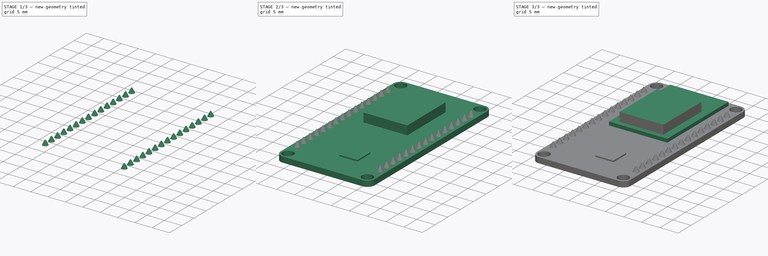
[diagram: build sequence overview — one tinted view per stage of 3, left to right]
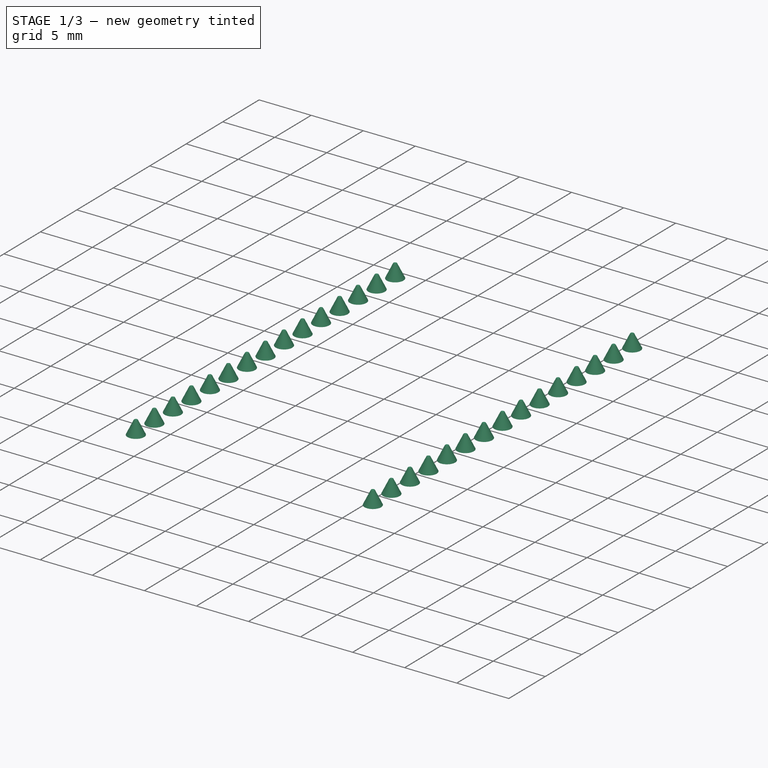
[diagram: stage 1 of 3 — iso view after this stage's code; geometry added in this stage tinted green]
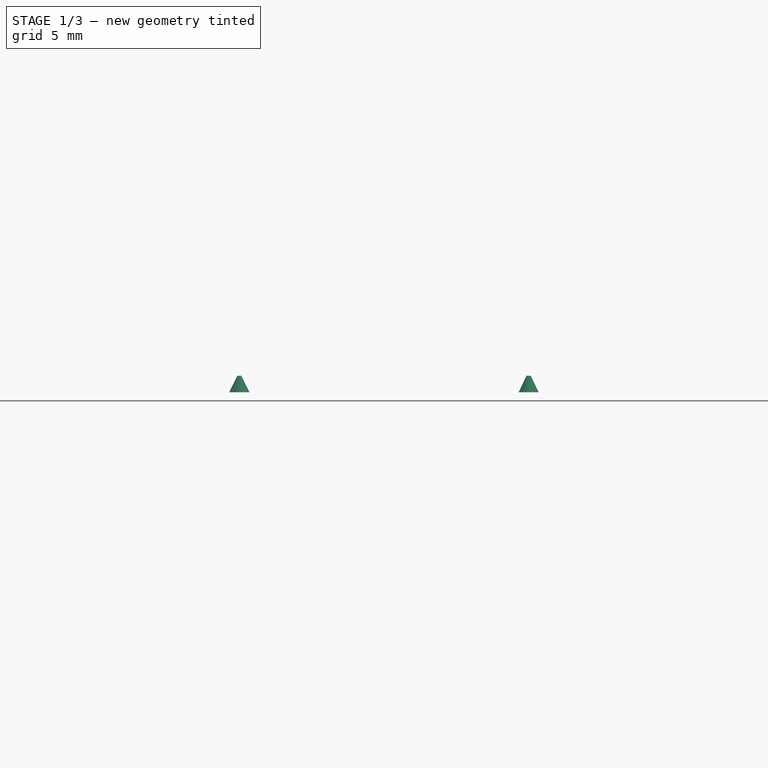
[diagram: stage 1 of 3 — front view after this stage's code; geometry added in this stage tinted green]
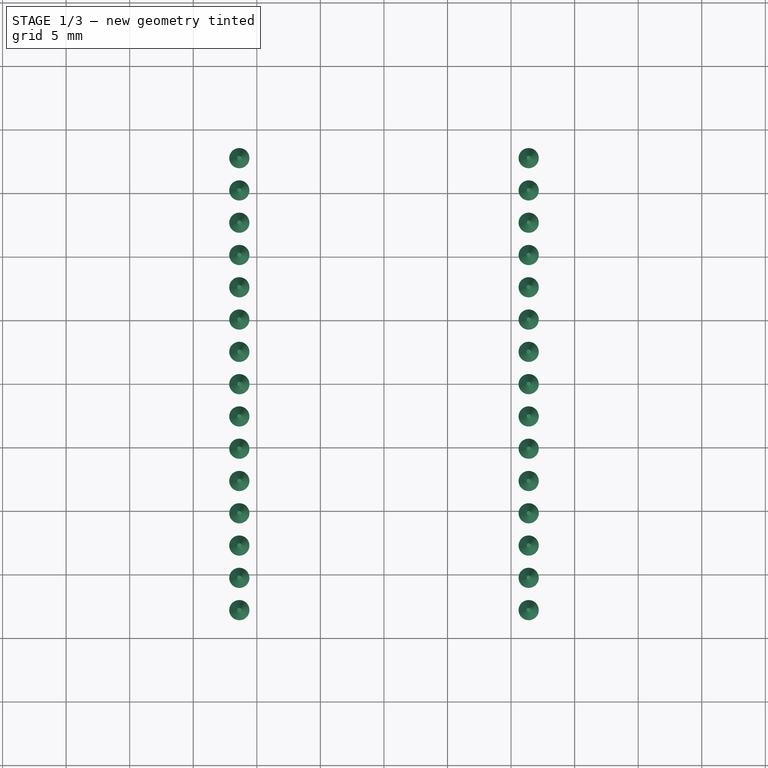
[diagram: stage 1 of 3 — top view after this stage's code; geometry added in this stage tinted green]
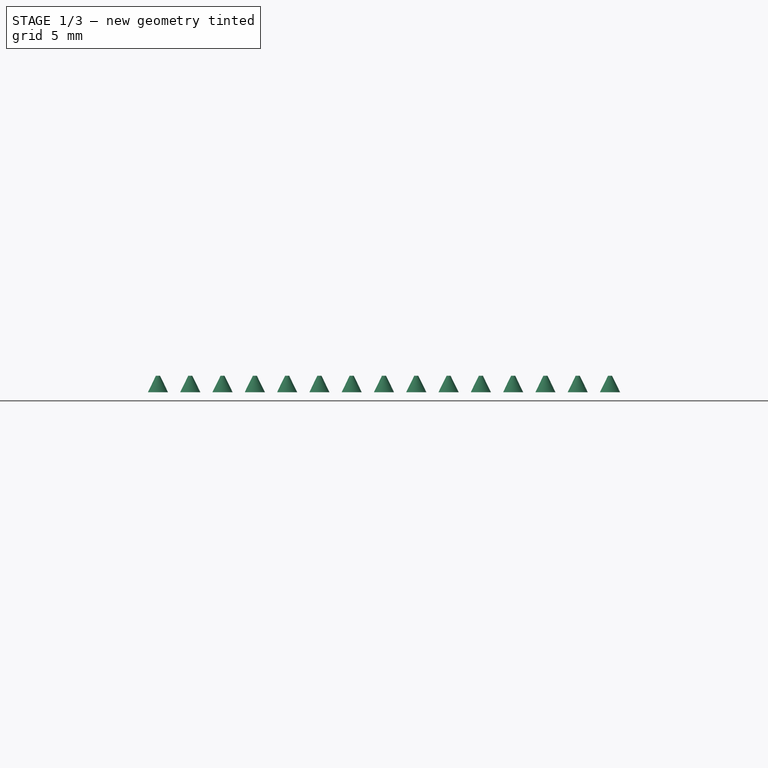
[diagram: stage 1 of 3 — right view after this stage's code; geometry added in this stage tinted green]
FCSTD DOCUMENT  (FreeCAD 0.18R15353 (Git))
Label: NodeMCU_Mockup
License: All rights reserved
LicenseURL: http://en.wikipedia.org/wiki/All_rights_reserved
objects: Part::Feature×6, Part::Box×3, Sketcher::SketchObject×1, Part::Fuse×1, PartDesign::Pad×1, PartDesign::Body×1, Part::Part2DObjectPython×1, Part::Loft×1, Part::FeaturePython×1, App::DocumentObjectGroup×1
note: 17 computed .brp shape members not serialized (recipe doc carries the construction recipe); baked Part::Feature solids carry a one-line shape summary decoded from their .brp

FEATURE [Part::Feature] Face003
  shape: bbox 2.351 x 2.356 x 2e-07 mm, 1 faces, 0 solids (baked)
FEATURE [Part::Part2DObjectPython] Circle  # Draft 2D object (typed FeaturePython)
  FirstAngle = 0
  LastAngle = 0
  MakeFace = true
  Placement = pos=(-11.375,-17.78,2.84) rot=(0,0,1;1.5708rad)
  Radius = 0.16
FEATURE [Part::Loft] Loft
  Closed = false
  MaxDegree = 5
  Ruled = false
  Sections = -> [Face003,Circle]
  Solid = true
FEATURE [Part::FeaturePython] Array  # Draft array (typed FeaturePython)
  Angle = 360
  ArrayType = 0
  Axis = (0,0,1)
  Base = -> Loft
  Center = (0,0,0)
  Fuse = false
  IntervalAxis = (0,0,0)
  IntervalX = (22.76,0,0)
  IntervalY = (0,2.54,0)
  IntervalZ = (0,0,1)
  NumberPolar = 1
  NumberX = 2
  NumberY = 15
  NumberZ = 1
FEATURE [App::DocumentObjectGroup] Group
  Group = -> [Body,Part__Feature,Part__Feature001,Fusion,Part__Feature011,Part__Feature012,Part__Feature013,Box002,Array]
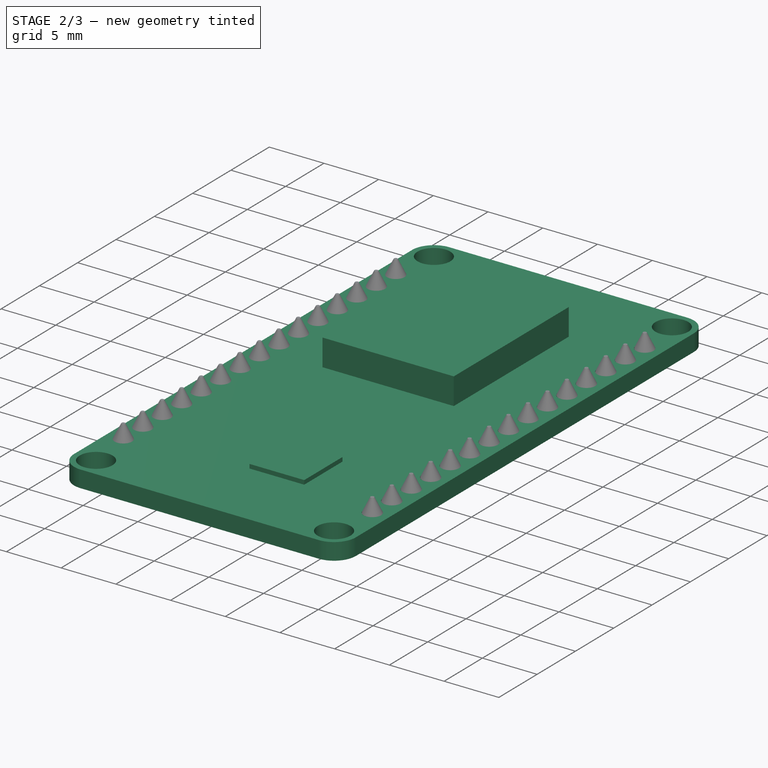
[diagram: stage 2 of 3 — iso view after this stage's code; geometry added in this stage tinted green]
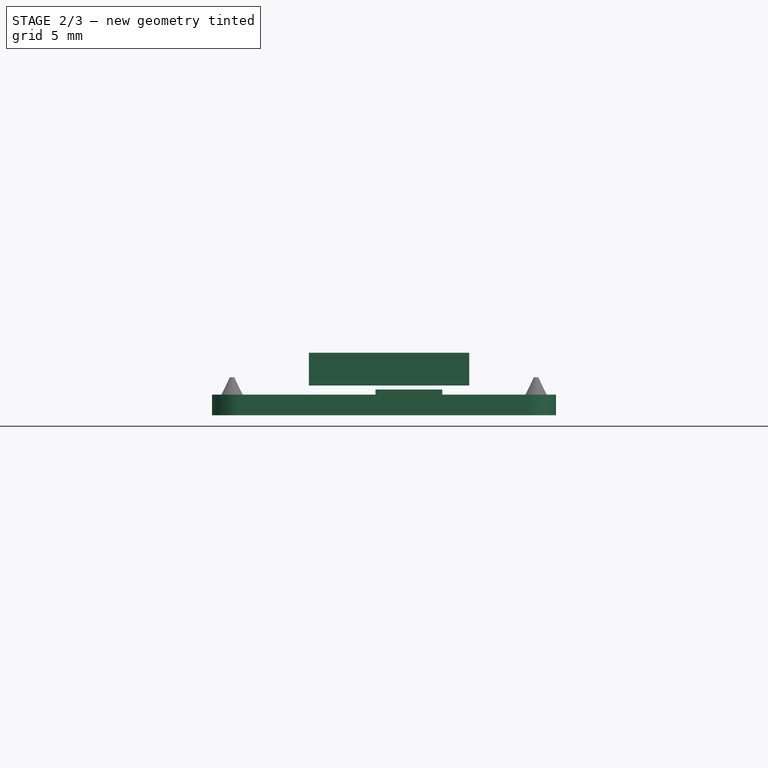
[diagram: stage 2 of 3 — front view after this stage's code; geometry added in this stage tinted green]
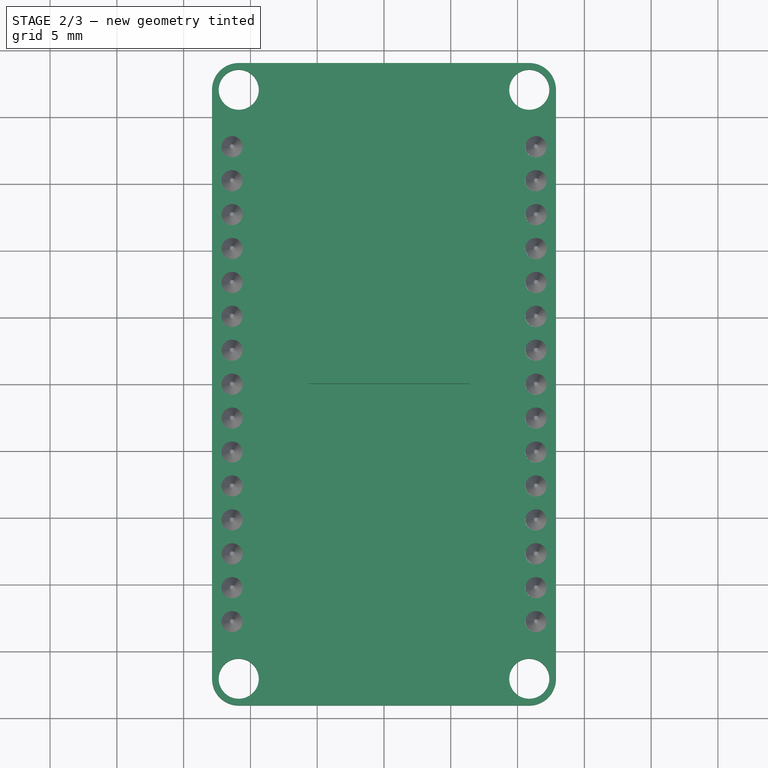
[diagram: stage 2 of 3 — top view after this stage's code; geometry added in this stage tinted green]
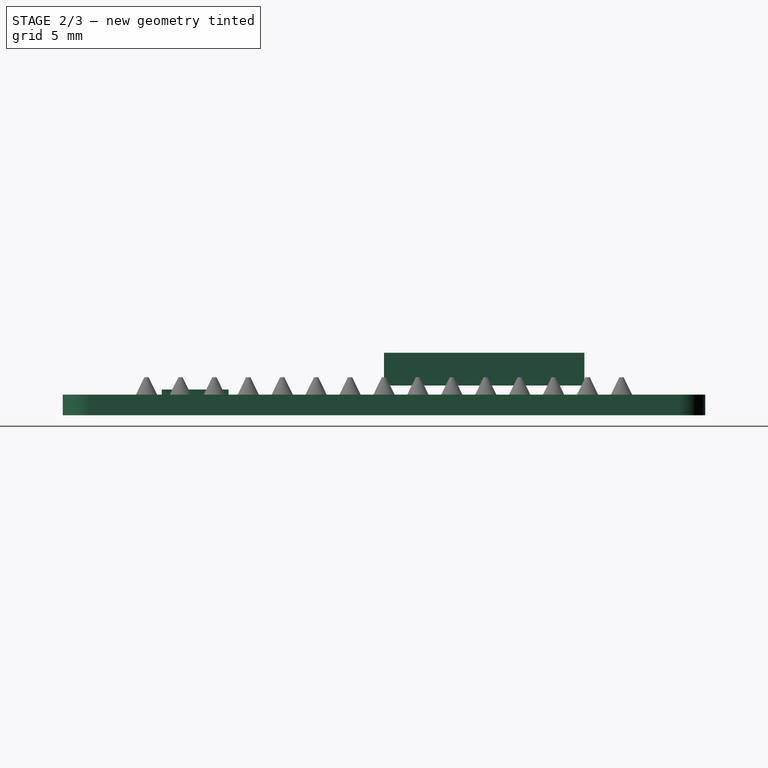
[diagram: stage 2 of 3 — right view after this stage's code; geometry added in this stage tinted green]
FEATURE [Part::Box] Box  label="ESP"
  AttacherType = Attacher::AttachEngine3D
  Height = 2.45
  Length = 12
  Placement = pos=(-5.62,0,2.22) rot=(0,0,1;0rad)
  Width = 15
FEATURE [Part::Feature] Part__Feature011  label="SW_SPST_B3U-1000P"
  Placement = pos=(-6,-21.16,1.54) rot=(0,0,-1;1.5708rad)
  shape: bbox 2.5 x 4 x 1.59 mm, 242 faces (baked)
FEATURE [Part::Feature] Part__Feature012  label="SW_SPST_B3U-1000P001"
  Placement = pos=(6,-21.255,1.54) rot=(0,0,-1;1.5708rad)
  shape: bbox 2.5 x 4 x 1.59 mm, 242 faces (baked)
FEATURE [Part::Feature] Part__Feature013  label="USB_Micro-B_Molex_47346-0001"
  Placement = pos=(0,-21,1.54) rot=(0,0,1;0rad)
  shape: bbox 7.977 x 5.418 x 2.937 mm, 484 faces (baked)
FEATURE [PartDesign::Pad] Pad
  Length = 1.54
  Length2 = 100
  Profile = -> Sketch001
  Type = 0
FEATURE [PartDesign::Body] Body
  Group = -> [Sketch001,Pad]
  Origin = -> Origin
  Tip = -> Pad
FEATURE [Part::Box] Box002  label="Cube"
  AttacherType = Attacher::AttachEngine3D
  Height = 0.64
  Length = 5
  Placement = pos=(-0.64,-16.64,1.28) rot=(0,0,1;0rad)
  Width = 5
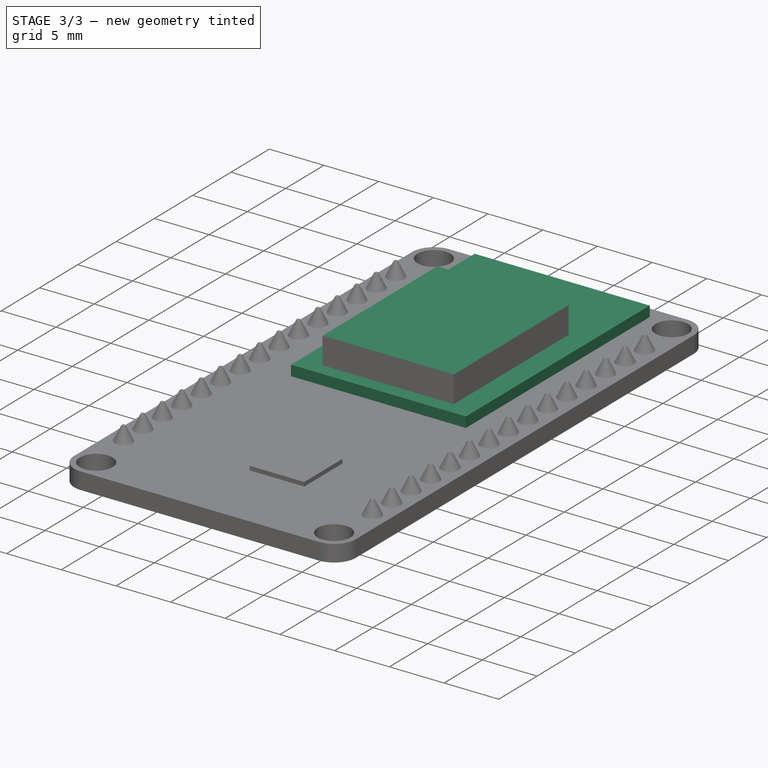
[diagram: stage 3 of 3 — iso view after this stage's code; geometry added in this stage tinted green]
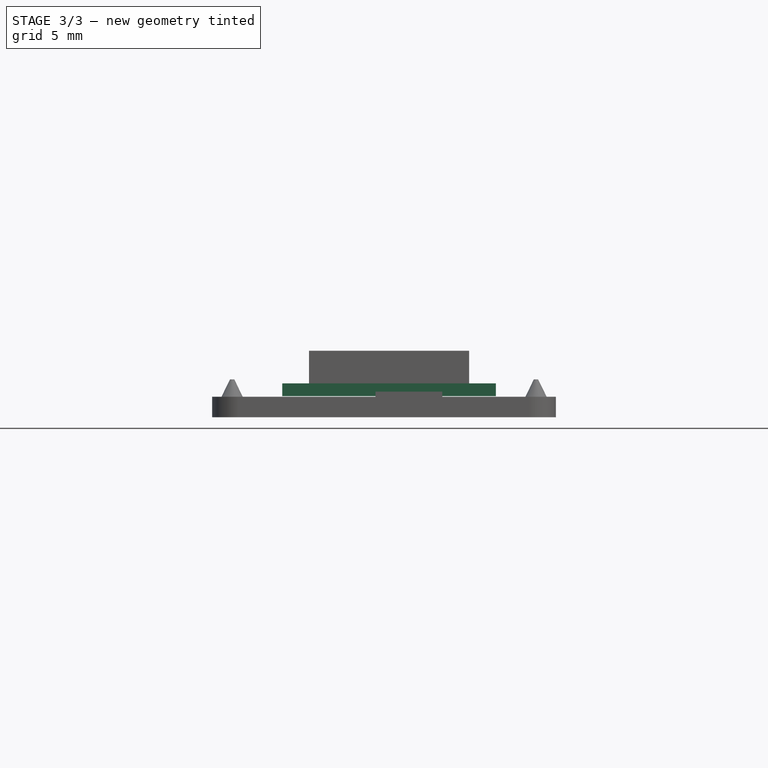
[diagram: stage 3 of 3 — front view after this stage's code; geometry added in this stage tinted green]
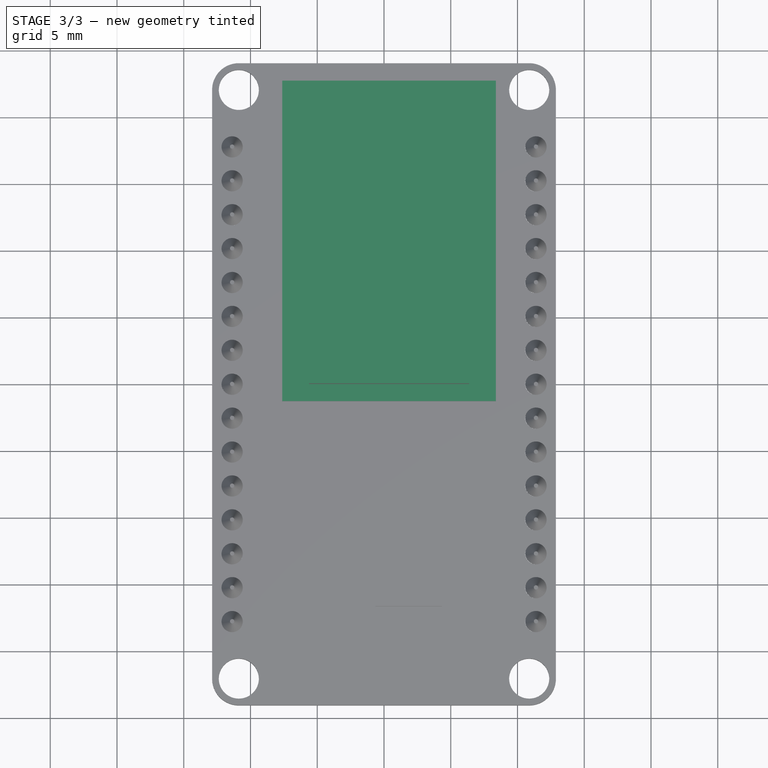
[diagram: stage 3 of 3 — top view after this stage's code; geometry added in this stage tinted green]
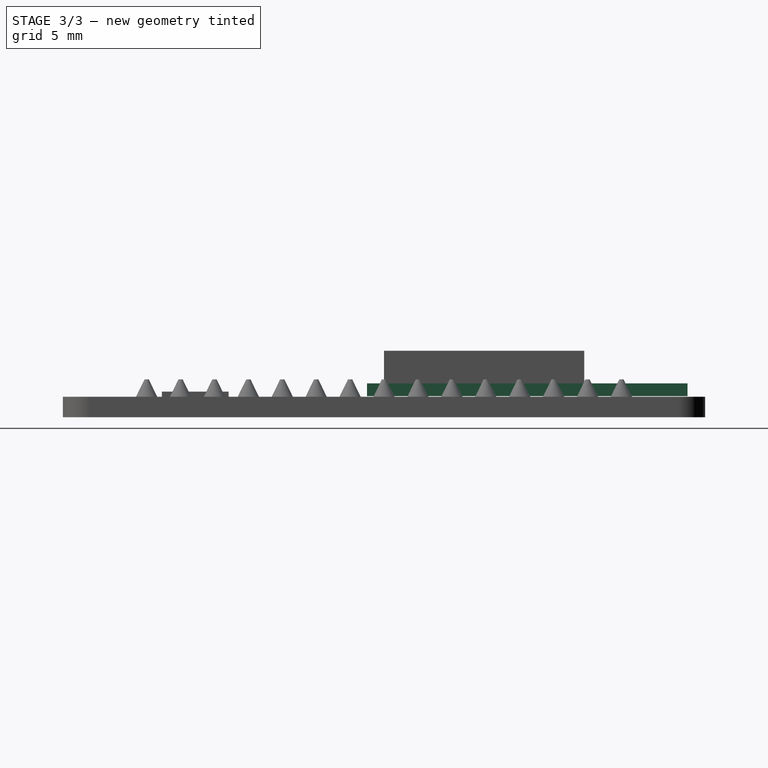
[diagram: stage 3 of 3 — right view after this stage's code; geometry added in this stage tinted green]
FEATURE [Sketcher::SketchObject] Sketch001
  sketch-geometry (70):
    g0: LineSegment StartX=-10.875 StartY=24.05 StartZ=0 EndX=10.875 EndY=24.05 EndZ=0
    g1: LineSegment StartX=12.875 StartY=22.05 StartZ=0 EndX=12.875 EndY=-22.05 EndZ=0
    g2: LineSegment StartX=10.875 StartY=-24.05 StartZ=0 EndX=-10.875 EndY=-24.05 EndZ=0
    g3: LineSegment StartX=-12.875 StartY=-22.05 StartZ=0 EndX=-12.875 EndY=22.05 EndZ=0
    g4: ArcOfCircle CenterX=-10.875 CenterY=22.05 CenterZ=0 NormalX=0 NormalY=0 NormalZ=1 AngleXU=0 Radius=2 StartAngle=1.5708 EndAngle=3.14159
    g5: ArcOfCircle CenterX=10.875 CenterY=22.05 CenterZ=0 NormalX=0 NormalY=0 NormalZ=1 AngleXU=0 Radius=2 StartAngle=2e-16 EndAngle=1.5708
    g6: ArcOfCircle CenterX=10.875 CenterY=-22.05 CenterZ=0 NormalX=0 NormalY=0 NormalZ=1 AngleXU=0 Radius=2 StartAngle=4.71239 EndAngle=6.28319
    g7: ArcOfCircle CenterX=-10.875 CenterY=-22.05 CenterZ=0 NormalX=0 NormalY=0 NormalZ=1 AngleXU=0 Radius=2 StartAngle=3.14159 EndAngle=4.71239
    g8: Circle CenterX=-10.875 CenterY=22.05 CenterZ=0 NormalX=0 NormalY=0 NormalZ=1 AngleXU=0 Radius=1.5
    g9: Circle CenterX=10.875 CenterY=22.05 CenterZ=0 NormalX=0 NormalY=0 NormalZ=1 AngleXU=0 Radius=1.5
    g10: Circle CenterX=10.875 CenterY=-22.05 CenterZ=0 NormalX=0 NormalY=0 NormalZ=1 AngleXU=0 Radius=1.5
    g11: Circle CenterX=-10.875 CenterY=-22.05 CenterZ=0 NormalX=0 NormalY=0 NormalZ=1 AngleXU=0 Radius=1.5
    g12: Circle CenterX=-11.375 CenterY=17.78 CenterZ=0 NormalX=0 NormalY=0 NormalZ=1 AngleXU=0 Radius=0.79375
    g13: Circle CenterX=-11.375 CenterY=-17.78 CenterZ=0 NormalX=0 NormalY=0 NormalZ=1 AngleXU=0 Radius=0.79375
    g14: Circle CenterX=-11.375 CenterY=15.24 CenterZ=0 NormalX=0 NormalY=0 NormalZ=1 AngleXU=0 Radius=0.79375
    g15: Circle CenterX=-11.375 CenterY=12.7 CenterZ=0 NormalX=0 NormalY=0 NormalZ=1 AngleXU=0 Radius=0.79375
    g16: Circle CenterX=-11.375 CenterY=10.16 CenterZ=0 NormalX=0 NormalY=0 NormalZ=1 AngleXU=0 Radius=0.79375
    g17: Circle CenterX=-11.375 CenterY=7.62 CenterZ=0 NormalX=0 NormalY=0 NormalZ=1 AngleXU=0 Radius=0.79375
    g18: Circle CenterX=-11.375 CenterY=5.08 CenterZ=0 NormalX=0 NormalY=0 NormalZ=1 AngleXU=0 Radius=0.79375
    g19: Circle CenterX=-11.375 CenterY=2.54 CenterZ=0 NormalX=0 NormalY=0 NormalZ=1 AngleXU=0 Radius=0.79375
    g20: Circle CenterX=-11.375 CenterY=-12.7 CenterZ=0 NormalX=0 NormalY=0 NormalZ=1 AngleXU=0 Radius=0.79375
    g21: Circle CenterX=-11.375 CenterY=-15.24 CenterZ=0 NormalX=0 NormalY=0 NormalZ=1 AngleXU=0 Radius=0.79375
    g22: Circle CenterX=-11.375 CenterY=-10.16 CenterZ=0 NormalX=0 NormalY=0 NormalZ=1 AngleXU=0 Radius=0.79375
    g23: Circle CenterX=-11.375 CenterY=-7.62 CenterZ=0 NormalX=0 NormalY=0 NormalZ=1 AngleXU=0 Radius=0.79375
    g24: Circle CenterX=-11.375 CenterY=-5.08 CenterZ=0 NormalX=0 NormalY=0 NormalZ=1 AngleXU=0 Radius=0.79375
    g25: Circle CenterX=-11.375 CenterY=-2.54 CenterZ=0 NormalX=0 NormalY=0 NormalZ=1 AngleXU=0 Radius=0.79375
    g26: Circle CenterX=-11.375 CenterY=0 CenterZ=0 NormalX=0 NormalY=0 NormalZ=1 AngleXU=0 Radius=0.79375
    g27: LineSegment [constr] StartX=-11.375 StartY=17.78 StartZ=0 EndX=-11.375 EndY=15.24 EndZ=0
    g28: LineSegment [constr] StartX=-11.375 StartY=15.24 StartZ=0 EndX=-11.375 EndY=12.7 EndZ=0
    g29: LineSegment [constr] StartX=-11.375 StartY=12.7 StartZ=0 EndX=-11.375 EndY=10.16 EndZ=0
    g30: LineSegment [constr] StartX=-11.375 StartY=10.16 StartZ=0 EndX=-11.375 EndY=7.62 EndZ=0
    g31: LineSegment [constr] StartX=-11.375 StartY=7.62 StartZ=0 EndX=-11.375 EndY=5.08 EndZ=0
    g32: LineSegment [constr] StartX=-11.375 StartY=5.08 StartZ=0 EndX=-11.375 EndY=2.54 EndZ=0
    g33: LineSegment [constr] StartX=-11.375 StartY=2.54 StartZ=0 EndX=-11.375 EndY=0 EndZ=0
    g34: LineSegment [constr] StartX=-11.375 StartY=0 StartZ=0 EndX=-11.375 EndY=-2.54 EndZ=0
    g35: LineSegment [constr] StartX=-11.375 StartY=-2.54 StartZ=0 EndX=-11.375 EndY=-5.08 EndZ=0
    g36: LineSegment [constr] StartX=-11.375 StartY=-5.08 StartZ=0 EndX=-11.375 EndY=-7.62 EndZ=0
    g37: LineSegment [constr] StartX=-11.375 StartY=-7.62 StartZ=0 EndX=-11.375 EndY=-10.16 EndZ=0
    g38: LineSegment [constr] StartX=-11.375 StartY=-10.16 StartZ=0 EndX=-11.375 EndY=-12.7 EndZ=0
    g39: LineSegment [constr] StartX=-11.375 StartY=-12.7 StartZ=0 EndX=-11.375 EndY=-15.24 EndZ=0
    g40: LineSegment [constr] StartX=-11.375 StartY=-15.24 StartZ=0 EndX=-11.375 EndY=-17.78 EndZ=0
    g41: Circle CenterX=11.375 CenterY=17.78 CenterZ=0 NormalX=0 NormalY=0 NormalZ=1 AngleXU=0 Radius=0.79375
    g42: Circle CenterX=11.375 CenterY=-17.78 CenterZ=0 NormalX=0 NormalY=0 NormalZ=1 AngleXU=0 Radius=0.79375
    g43: Circle CenterX=11.375 CenterY=15.24 CenterZ=0 NormalX=0 NormalY=0 NormalZ=1 AngleXU=0 Radius=0.79375
    g44: Circle CenterX=11.375 CenterY=12.7 CenterZ=0 NormalX=0 NormalY=0 NormalZ=1 AngleXU=0 Radius=0.79375
    g45: Circle CenterX=11.375 CenterY=10.16 CenterZ=0 NormalX=0 NormalY=0 NormalZ=1 AngleXU=0 Radius=0.79375
    g46: Circle CenterX=11.375 CenterY=7.62 CenterZ=0 NormalX=0 NormalY=0 NormalZ=1 AngleXU=0 Radius=0.79375
    g47: Circle CenterX=11.375 CenterY=5.08 CenterZ=0 NormalX=0 NormalY=0 NormalZ=1 AngleXU=0 Radius=0.79375
    g48: Circle CenterX=11.375 CenterY=2.54 CenterZ=0 NormalX=0 NormalY=0 NormalZ=1 AngleXU=0 Radius=0.79375
    g49: Circle CenterX=11.375 CenterY=-12.7 CenterZ=0 NormalX=0 NormalY=0 NormalZ=1 AngleXU=0 Radius=0.79375
    g50: Circle CenterX=11.375 CenterY=-15.24 CenterZ=0 NormalX=0 NormalY=0 NormalZ=1 AngleXU=0 Radius=0.79375
    g51: Circle CenterX=11.375 CenterY=-10.16 CenterZ=0 NormalX=0 NormalY=0 NormalZ=1 AngleXU=0 Radius=0.79375
    g52: Circle CenterX=11.375 CenterY=-7.62 CenterZ=0 NormalX=0 NormalY=0 NormalZ=1 AngleXU=0 Radius=0.79375
    g53: Circle CenterX=11.375 CenterY=-5.08 CenterZ=0 NormalX=0 NormalY=0 NormalZ=1 AngleXU=0 Radius=0.79375
    g54: Circle CenterX=11.375 CenterY=-2.54 CenterZ=0 NormalX=0 NormalY=0 NormalZ=1 AngleXU=0 Radius=0.79375
    g55: Circle CenterX=11.375 CenterY=0 CenterZ=0 NormalX=0 NormalY=0 NormalZ=1 AngleXU=0 Radius=0.79375
    g56: LineSegment [constr] StartX=11.375 StartY=17.78 StartZ=0 EndX=11.375 EndY=15.24 EndZ=0
    g57: LineSegment [constr] StartX=11.375 StartY=15.24 StartZ=0 EndX=11.375 EndY=12.7 EndZ=0
    g58: LineSegment [constr] StartX=11.375 StartY=12.7 StartZ=0 EndX=11.375 EndY=10.16 EndZ=0
    g59: LineSegment [constr] StartX=11.375 StartY=10.16 StartZ=0 EndX=11.375 EndY=7.62 EndZ=0
    g60: LineSegment [constr] StartX=11.375 StartY=7.62 StartZ=0 EndX=11.375 EndY=5.08 EndZ=0
    g61: LineSegment [constr] StartX=11.375 StartY=5.08 StartZ=0 EndX=11.375 EndY=2.54 EndZ=0
    g62: LineSegment [constr] StartX=11.375 StartY=2.54 StartZ=0 EndX=11.375 EndY=0 EndZ=0
    g63: LineSegment [constr] StartX=11.375 StartY=0 StartZ=0 EndX=11.375 EndY=-2.54 EndZ=0
    g64: LineSegment [constr] StartX=11.375 StartY=-2.54 StartZ=0 EndX=11.375 EndY=-5.08 EndZ=0
    g65: LineSegment [constr] StartX=11.375 StartY=-5.08 StartZ=0 EndX=11.375 EndY=-7.62 EndZ=0
    g66: LineSegment [constr] StartX=11.375 StartY=-7.62 StartZ=0 EndX=11.375 EndY=-10.16 EndZ=0
    g67: LineSegment [constr] StartX=11.375 StartY=-10.16 StartZ=0 EndX=11.375 EndY=-12.7 EndZ=0
    g68: LineSegment [constr] StartX=11.375 StartY=-12.7 StartZ=0 EndX=11.375 EndY=-15.24 EndZ=0
    g69: LineSegment [constr] StartX=11.375 StartY=-15.24 StartZ=0 EndX=11.375 EndY=-17.78 EndZ=0
  constraints (172):
    c: Horizontal(g0)
    c: Horizontal(g2)
    c: Vertical(g1)
    c: Vertical(g3)
    c: Tangent(g0,g4) = 1.5708
    c: Tangent(g3,g4) = 1.5708
    c: Tangent(g0,g5) = 1.5708
    c: Tangent(g1,g5) = 1.5708
    c: Tangent(g1,g6) = 1.5708
    c: Tangent(g2,g6) = 1.5708
    c: Tangent(g2,g7) = 1.5708
    c: Tangent(g3,g7) = 1.5708
    c: Equal(g5,g6)
    c: Symmetric(g3,g1,g-2)
    c: Symmetric(g0,g2,g-1)
    c: DistanceY(g2,g0) = 48.1
    c: DistanceX(g3,g1) = 25.75
    c: Coincident(g8,g4)
    c: Radius(g8) = 1.5
    c: Equal(g8,g9) = 1.25
    c: Coincident(g9,g5)
    c: Coincident(g10,g6)
    c: Coincident(g11,g7)
    c: Equal(g8,g11)
    c: Equal(g11,g10)
    c: Radius(g4) = 2
    c: Radius(g12) = 0.79375
    c: PointOnObject(g26,g-1)
    c: Equal(g13,g14)
    c: Equal(g14,g15)
    c: Equal(g15,g16)
    c: Equal(g16,g17)
    c: Equal(g17,g18)
    c: Equal(g18,g19)
    c: Equal(g19,g20)
    c: Equal(g20,g21)
    c: Equal(g21,g22)
    c: Equal(g22,g23)
    c: Equal(g23,g24)
    c: Equal(g24,g25)
    c: Equal(g25,g26)
    c: Equal(g26,g12)
    c: Coincident(g27,g12)
    c: Coincident(g27,g14)
    c: Vertical(g27)
    c: Coincident(g28,g14)
    c: Coincident(g28,g15)
    c: Coincident(g29,g15)
    c: Coincident(g29,g16)
    c: Coincident(g30,g16)
    c: Coincident(g30,g17)
    c: Vertical(g30)
    c: Coincident(g31,g17)
    c: Coincident(g31,g18)
    c: Coincident(g32,g18)
    c: Coincident(g32,g19)
    c: Vertical(g32)
    c: Coincident(g33,g19)
    c: Coincident(g33,g26)
    c: Coincident(g34,g26)
    c: Coincident(g34,g25)
    c: Vertical(g34)
    c: Coincident(g35,g25)
    c: Coincident(g35,g24)
    c: Coincident(g36,g24)
    c: Coincident(g36,g23)
    c: Coincident(g37,g23)
    c: Coincident(g37,g22)
    c: Coincident(g38,g22)
    c: Coincident(g38,g20)
    c: Coincident(g39,g20)
    c: Coincident(g39,g21)
    c: Vertical(g39)
    c: Coincident(g40,g21)
    c: Coincident(g40,g13)
    c: Equal(g40,g39)
    c: Equal(g39,g38)
    c: Equal(g38,g37)
    c: Equal(g37,g36)
    c: Equal(g36,g35)
    c: Equal(g35,g34)
    c: Equal(g34,g33)
    c: Equal(g33,g32)
    c: Equal(g32,g31)
    c: Equal(g31,g30)
    c: Equal(g30,g29)
    c: Equal(g29,g28)
    c: Equal(g28,g27)
    c: Vertical(g40)
    c: Vertical(g36)
    c: Vertical(g37)
    c: Vertical(g38)
    c: Vertical(g35)
    c: Vertical(g33)
    c: Vertical(g31)
    c: Vertical(g29)
    c: Vertical(g28)
    c: Equal(g12,g41) = 0.75
    c: Equal(g42,g43)
    c: Equal(g43,g44)
    c: Equal(g44,g45)
    c: Equal(g45,g46)
    c: Equal(g46,g47)
    c: Equal(g47,g48)
    c: Equal(g48,g49)
    c: Equal(g49,g50)
    c: Equal(g50,g51)
    c: Equal(g51,g52)
    c: Equal(g52,g53)
    c: Equal(g53,g54)
    c: Equal(g54,g55)
    c: Equal(g55,g41)
    c: Coincident(g56,g41)
    c: Coincident(g56,g43)
    c: Vertical(g56)
    c: Coincident(g57,g43)
    c: Coincident(g57,g44)
    c: Coincident(g58,g44)
    c: Coincident(g58,g45)
    c: Coincident(g59,g45)
    c: Coincident(g59,g46)
    c: Vertical(g59)
    c: Coincident(g60,g46)
    c: Coincident(g60,g47)
    c: Coincident(g61,g47)
    c: Coincident(g61,g48)
    c: Vertical(g61)
    c: Coincident(g62,g48)
    c: Coincident(g62,g55)
    c: Coincident(g63,g55)
    c: Coincident(g63,g54)
    c: Vertical(g63)
    c: Coincident(g64,g54)
    c: Coincident(g64,g53)
    c: Coincident(g65,g53)
    c: Coincident(g65,g52)
    c: Coincident(g66,g52)
    c: Coincident(g66,g51)
    c: Coincident(g67,g51)
    c: Coincident(g67,g49)
    c: Coincident(g68,g49)
    c: Coincident(g68,g50)
    c: Vertical(g68)
    c: Coincident(g69,g50)
    c: Coincident(g69,g42)
    c: Equal(g69,g68)
    c: Equal(g68,g67)
    c: Equal(g67,g66)
    c: Equal(g66,g65)
    c: Equal(g65,g64)
    c: Equal(g64,g63)
    c: Equal(g63,g62)
    c: Equal(g62,g61)
    c: Equal(g61,g60)
    c: Equal(g60,g59)
    c: Equal(g59,g58)
    c: Equal(g58,g57)
    c: Equal(g57,g56)
    c: Vertical(g69)
    c: Vertical(g65)
    c: Vertical(g66)
    c: Vertical(g67)
    c: Vertical(g64)
    c: Vertical(g62)
    c: Vertical(g60)
    c: Vertical(g58)
    c: Vertical(g57)
    c: PointOnObject(g55,g-1)
    c: Distance(g12,g3) = 1.5
    c: Symmetric(g12,g41,g-2)
    c: DistanceY(g27,g27) = 2.54
    c: DistanceX(g3,g4) = 2
FEATURE [Part::Feature] Part__Feature  label="PinHeader_1x15_P254mm_Vertical"
  Placement = pos=(-11.375,17.78,0) rot=(0,1,0;3.14159rad)
  shape: bbox 2.54 x 38.1 x 11.54 mm, 364 faces (baked)
FEATURE [Part::Feature] Part__Feature001  label="PinHeader_1x15_P254mm_Vertical001"
  Placement = pos=(11.375,17.78,0) rot=(0,1,0;3.14159rad)
  shape: bbox 2.54 x 38.1 x 11.54 mm, 364 faces (baked)
FEATURE [Part::Box] Box001  label="ESPBoard"
  AttacherType = Attacher::AttachEngine3D
  Height = 0.95
  Length = 16
  Placement = pos=(-7.62,-1.27,1.27) rot=(0,0,1;0rad)
  Width = 24
FEATURE [Part::Fuse] Fusion  label="ESP8266"
  Base = -> Box
  Placement = pos=(0,0,0.3175) rot=(0,0,1;0rad)
  Tool = -> Box001
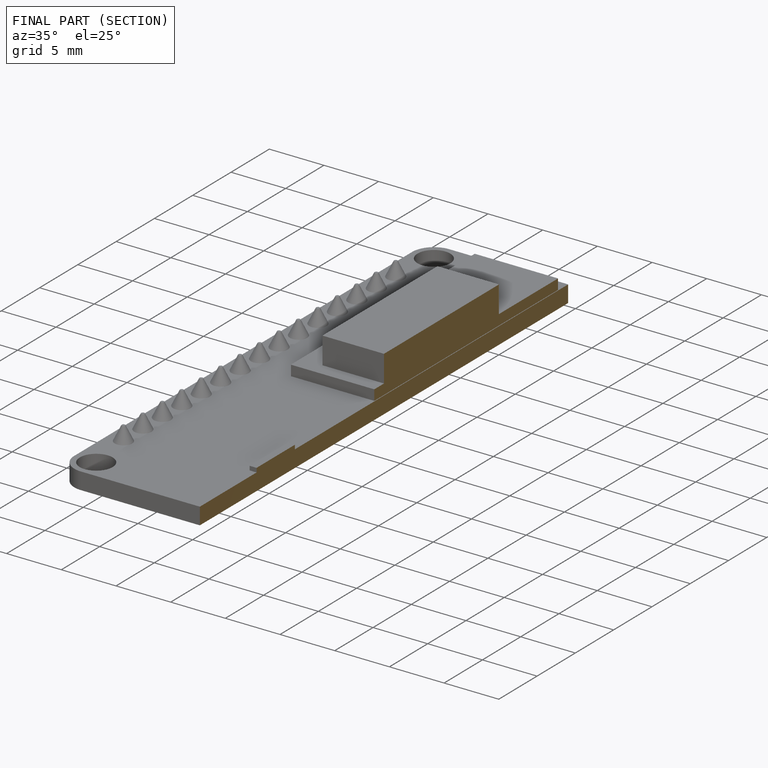
[diagram: finished part — half-section view (interior)]
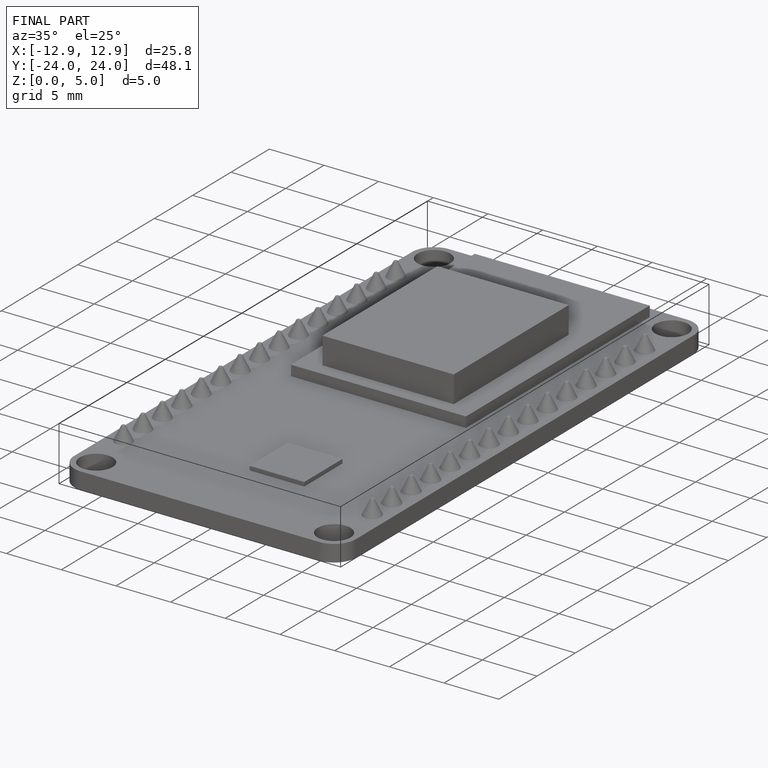
[diagram: finished part — iso view with bounding-box wireframe]
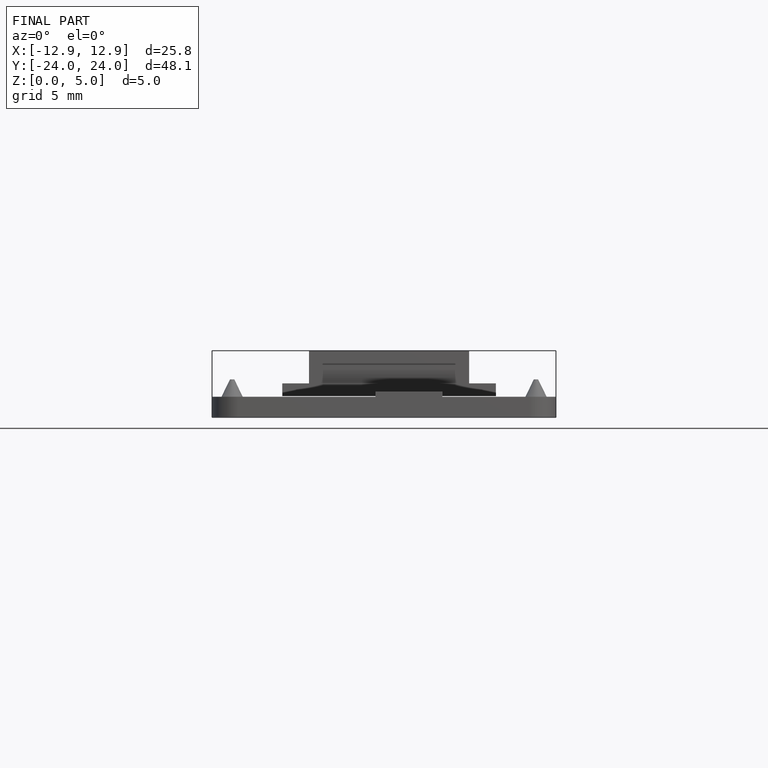
[diagram: finished part — front view with bounding-box wireframe]
